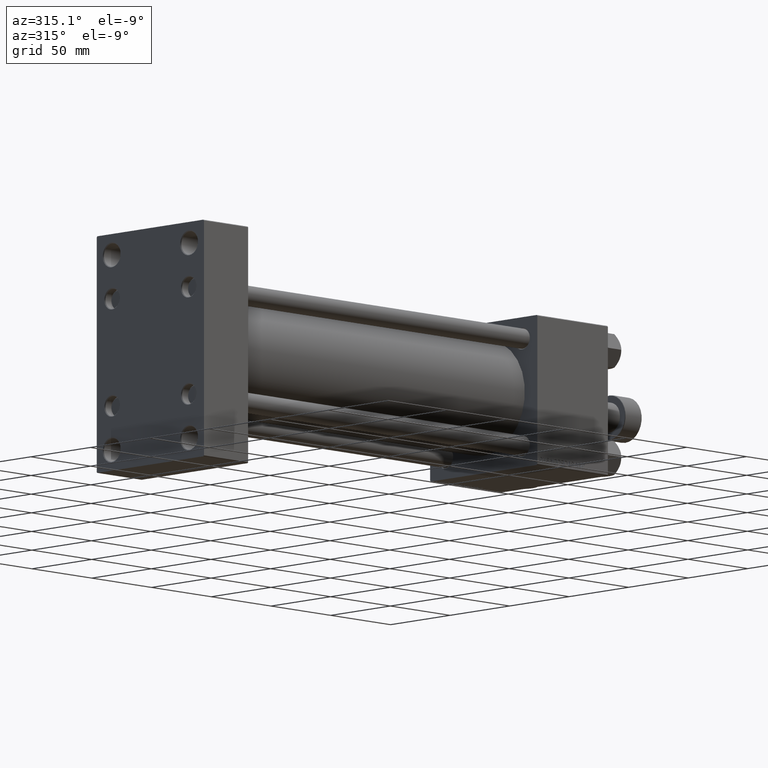
[diagram: clean part render]
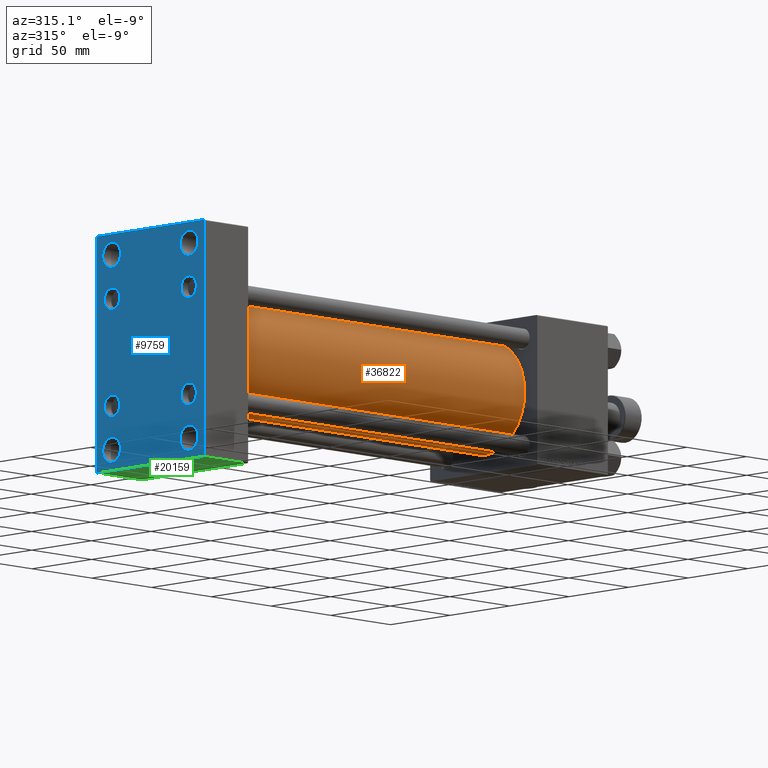
[diagram: same view with three faces highlighted in distinct colors, each labeled with its STEP entity id]
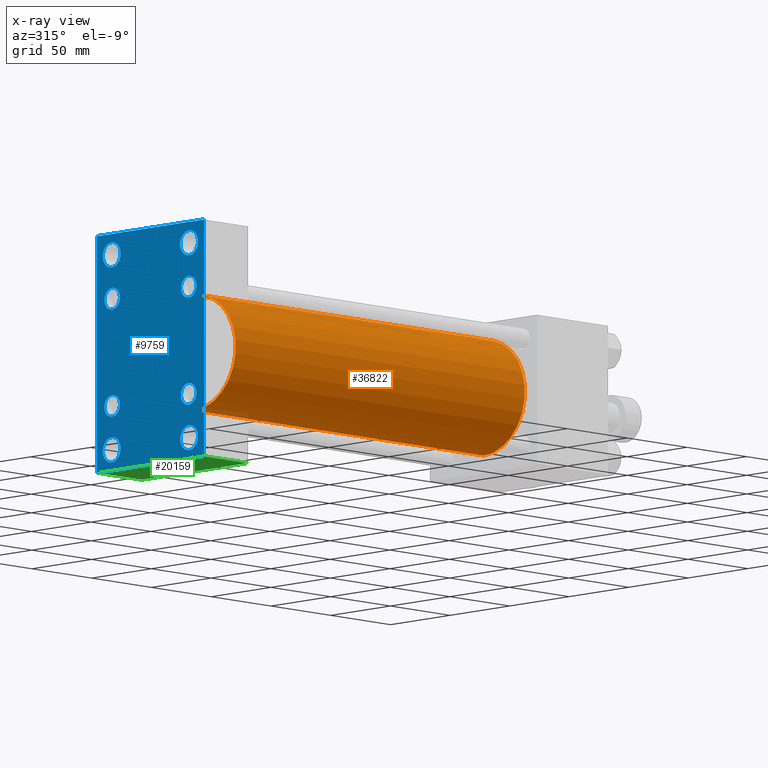
[diagram: x-ray of the same camera — body ghosted, the three highlighted faces saturated]
A machine part, auxiliary view with three faces highlighted in distinct colors.
The next image is the same camera in x-ray (body ghosted, the three faces saturated) — at least one of them is partly hidden behind the body in this view.
Their STEP definitions:

[orange] entity #36822 — the highlighted cylindrical surface (partial cylindrical patch) has radius 34.5 mm, axis along (-1, -0, -0).
#346 = DIRECTION ( 'NONE',  ( -1.000000000000000000, -0.000000000000000000, -0.000000000000000000 ) ) ;
#671 = ORIENTED_EDGE ( 'NONE', *, *, #37543, .T. ) ;
#734 = CIRCLE ( 'NONE', #2442, 34.50000000000000000 ) ;
#1503 = EDGE_CURVE ( 'NONE', #26416, #41561, #36742, .T. ) ;
#2442 = AXIS2_PLACEMENT_3D ( 'NONE', #2671, #30037, #38015 ) ;
#2671 = CARTESIAN_POINT ( 'NONE',  ( 278.9999999999999432, -2.602085213965210642E-15, 0.000000000000000000 ) ) ;
#3211 = DIRECTION ( 'NONE',  ( 1.000000000000000000, 0.000000000000000000, 0.000000000000000000 ) ) ;
#6410 = DIRECTION ( 'NONE',  ( 0.000000000000000000, 0.000000000000000000, 1.000000000000000000 ) ) ;
#6562 = DIRECTION ( 'NONE',  ( 0.000000000000000000, 0.000000000000000000, 1.000000000000000000 ) ) ;
#8128 = CARTESIAN_POINT ( 'NONE',  ( 278.9999999999999432, 1.622946243093158675E-15, -34.50000000000000000 ) ) ;
#9395 = VERTEX_POINT ( 'NONE', #12152 ) ;
#10813 = CYLINDRICAL_SURFACE ( 'NONE', #26013, 34.50000000000000000 ) ;
#11702 = CARTESIAN_POINT ( 'NONE',  ( 278.9999999999999432, -2.602085213965210642E-15, 34.50000000000000000 ) ) ;
#11872 = ORIENTED_EDGE ( 'NONE', *, *, #39644, .T. ) ;
#12152 = CARTESIAN_POINT ( 'NONE',  ( 37.00000000000000711, -2.602085213965210642E-15, 34.50000000000000000 ) ) ;
#12498 = VECTOR ( 'NONE', #20192, 1000.000000000000000 ) ;
#13092 = VERTEX_POINT ( 'NONE', #40694 ) ;
#13990 = ORIENTED_EDGE ( 'NONE', *, *, #22378, .F. ) ;
#15241 = EDGE_LOOP ( 'NONE', ( #45326, #13990, #671, #11872 ) ) ;
#19313 = CIRCLE ( 'NONE', #39728, 34.50000000000000000 ) ;
#20192 = DIRECTION ( 'NONE',  ( -1.000000000000000000, -0.000000000000000000, -0.000000000000000000 ) ) ;
#21446 = VECTOR ( 'NONE', #346, 1000.000000000000000 ) ;
#22223 = CARTESIAN_POINT ( 'NONE',  ( 37.00000000000000711, 1.622946243093158675E-15, -34.50000000000000000 ) ) ;
#22378 = EDGE_CURVE ( 'NONE', #13092, #26416, #734, .T. ) ;
#23652 = CARTESIAN_POINT ( 'NONE',  ( 37.00000000000000711, -2.602085213965210642E-15, 0.000000000000000000 ) ) ;
#26013 = AXIS2_PLACEMENT_3D ( 'NONE', #50663, #30461, #6562 ) ;
#26416 = VERTEX_POINT ( 'NONE', #8128 ) ;
#30037 = DIRECTION ( 'NONE',  ( 1.000000000000000000, 0.000000000000000000, 0.000000000000000000 ) ) ;
#30461 = DIRECTION ( 'NONE',  ( -1.000000000000000000, -0.000000000000000000, -0.000000000000000000 ) ) ;
#36742 = LINE ( 'NONE', #41502, #21446 ) ;
#36822 = ADVANCED_FACE ( 'NONE', ( #42938 ), #10813, .T. ) ;
#37543 = EDGE_CURVE ( 'NONE', #13092, #9395, #39603, .T. ) ;
#38015 = DIRECTION ( 'NONE',  ( 0.000000000000000000, 0.000000000000000000, -1.000000000000000000 ) ) ;
#39603 = LINE ( 'NONE', #11702, #12498 ) ;
#39644 = EDGE_CURVE ( 'NONE', #9395, #41561, #19313, .T. ) ;
#39728 = AXIS2_PLACEMENT_3D ( 'NONE', #23652, #3211, #6410 ) ;
#40694 = CARTESIAN_POINT ( 'NONE',  ( 278.9999999999999432, -2.602085213965210642E-15, 34.50000000000000000 ) ) ;
#41502 = CARTESIAN_POINT ( 'NONE',  ( 278.9999999999999432, 1.622946243093158675E-15, -34.50000000000000000 ) ) ;
#41561 = VERTEX_POINT ( 'NONE', #22223 ) ;
#42938 = FACE_OUTER_BOUND ( 'NONE', #15241, .T. ) ;
#45326 = ORIENTED_EDGE ( 'NONE', *, *, #1503, .F. ) ;
#50663 = CARTESIAN_POINT ( 'NONE',  ( 278.9999999999999432, -2.602085213965210642E-15, 0.000000000000000000 ) ) ;

[blue] entity #9759 — the highlighted planar face has unit normal (-1, 0, 0).
#99 = CARTESIAN_POINT ( 'NONE',  ( 0.000000000000000000, 44.50000000000002132, -70.99999999999998579 ) ) ;
#148 = DIRECTION ( 'NONE',  ( 0.000000000000000000, 0.000000000000000000, 1.000000000000000000 ) ) ;
#178 = VERTEX_POINT ( 'NONE', #24785 ) ;
#279 = VERTEX_POINT ( 'NONE', #11457 ) ;
#382 = FACE_OUTER_BOUND ( 'NONE', #3980, .T. ) ;
#563 = VERTEX_POINT ( 'NONE', #51795 ) ;
#660 = DIRECTION ( 'NONE',  ( 0.000000000000000000, -1.000000000000000000, 0.000000000000000000 ) ) ;
#1179 = DIRECTION ( 'NONE',  ( 1.000000000000000000, 0.000000000000000000, 0.000000000000000000 ) ) ;
#1242 = CARTESIAN_POINT ( 'NONE',  ( 0.000000000000000000, -45.00000000000000000, 70.99999999999998579 ) ) ;
#1380 = CARTESIAN_POINT ( 'NONE',  ( 0.000000000000000000, 32.50000000000000000, 58.50000000000000000 ) ) ;
#1423 = VECTOR ( 'NONE', #12870, 1000.000000000000000 ) ;
#1458 = VERTEX_POINT ( 'NONE', #48712 ) ;
#1621 = CARTESIAN_POINT ( 'NONE',  ( 0.000000000000000000, 32.14999999999999147, -32.15000000000000568 ) ) ;
#2093 = EDGE_CURVE ( 'NONE', #20975, #41141, #23162, .T. ) ;
#2306 = LINE ( 'NONE', #23027, #15212 ) ;
#2331 = DIRECTION ( 'NONE',  ( 1.000000000000000000, 0.000000000000000000, 0.000000000000000000 ) ) ;
#2545 = DIRECTION ( 'NONE',  ( 0.000000000000000000, 0.000000000000000000, 1.000000000000000000 ) ) ;
#2625 = VERTEX_POINT ( 'NONE', #33477 ) ;
#2763 = EDGE_LOOP ( 'NONE', ( #6912, #16130 ) ) ;
#2903 = VERTEX_POINT ( 'NONE', #34460 ) ;
#3105 = CARTESIAN_POINT ( 'NONE',  ( 0.000000000000000000, -32.50000000000000000, -58.50000000000000711 ) ) ;
#3133 = CARTESIAN_POINT ( 'NONE',  ( 0.000000000000000000, 32.50000000000000000, 58.50000000000000000 ) ) ;
#3176 = LINE ( 'NONE', #11419, #51273 ) ;
#3346 = CARTESIAN_POINT ( 'NONE',  ( 0.000000000000000000, 45.00000000000000711, 71.00000000000000000 ) ) ;
#3584 = FACE_BOUND ( 'NONE', #7745, .T. ) ;
#3632 = ORIENTED_EDGE ( 'NONE', *, *, #27548, .F. ) ;
#3980 = EDGE_LOOP ( 'NONE', ( #27130, #14865, #43428, #33917, #3632, #10163, #12442, #49056 ) ) ;
#4641 = LINE ( 'NONE', #33307, #1423 ) ;
#4800 = ORIENTED_EDGE ( 'NONE', *, *, #24777, .T. ) ;
#5147 = FACE_BOUND ( 'NONE', #29053, .T. ) ;
#5176 = CARTESIAN_POINT ( 'NONE',  ( 0.000000000000000000, -32.14999999999997726, -32.15000000000001279 ) ) ;
#5507 = CIRCLE ( 'NONE', #6389, 6.500000000000033751 ) ;
#6091 = CARTESIAN_POINT ( 'NONE',  ( 0.000000000000000000, -32.14999999999997726, 32.15000000000001279 ) ) ;
#6279 = CARTESIAN_POINT ( 'NONE',  ( 0.000000000000000000, 32.14999999999999147, 38.65000000000004832 ) ) ;
#6389 = AXIS2_PLACEMENT_3D ( 'NONE', #12382, #36803, #148 ) ;
#6518 = CIRCLE ( 'NONE', #26839, 6.500000000000033751 ) ;
#6698 = CIRCLE ( 'NONE', #42321, 6.499999999999977796 ) ;
#6737 = CARTESIAN_POINT ( 'NONE',  ( 0.000000000000000000, -44.49999999999999289, 70.99999999999998579 ) ) ;
#6912 = ORIENTED_EDGE ( 'NONE', *, *, #44196, .T. ) ;
#7111 = CARTESIAN_POINT ( 'NONE',  ( 0.000000000000000000, -45.00000000000000000, 70.49999999999998579 ) ) ;
#7652 = DIRECTION ( 'NONE',  ( 1.000000000000000000, 0.000000000000000000, 0.000000000000000000 ) ) ;
#7682 = EDGE_CURVE ( 'NONE', #41141, #20975, #19026, .T. ) ;
#7745 = EDGE_LOOP ( 'NONE', ( #17574, #33922 ) ) ;
#8431 = EDGE_CURVE ( 'NONE', #279, #39943, #36855, .T. ) ;
#8495 = AXIS2_PLACEMENT_3D ( 'NONE', #38730, #2331, #18530 ) ;
#8537 = EDGE_CURVE ( 'NONE', #2903, #16042, #3176, .T. ) ;
#8944 = AXIS2_PLACEMENT_3D ( 'NONE', #25601, #41787, #33054 ) ;
#9759 = ADVANCED_FACE ( 'NONE', ( #11563, #27763, #3584, #35990, #16841, #5147, #20833, #49007, #382 ), #33558, .T. ) ;
#10156 = DIRECTION ( 'NONE',  ( 0.000000000000000000, 0.000000000000000000, 1.000000000000000000 ) ) ;
#10163 = ORIENTED_EDGE ( 'NONE', *, *, #23210, .T. ) ;
#10418 = AXIS2_PLACEMENT_3D ( 'NONE', #12717, #24405, #20163 ) ;
#10969 = EDGE_CURVE ( 'NONE', #39943, #279, #48851, .T. ) ;
#11002 = EDGE_CURVE ( 'NONE', #1458, #2903, #39342, .T. ) ;
#11016 = ORIENTED_EDGE ( 'NONE', *, *, #35697, .T. ) ;
#11162 = VERTEX_POINT ( 'NONE', #26790 ) ;
#11219 = CARTESIAN_POINT ( 'NONE',  ( 0.000000000000000000, 32.50000000000000000, -58.50000000000000711 ) ) ;
#11419 = CARTESIAN_POINT ( 'NONE',  ( 0.000000000000000000, 45.00000000000000711, 71.00000000000000000 ) ) ;
#11457 = CARTESIAN_POINT ( 'NONE',  ( 0.000000000000000000, -32.50000000000000000, 50.99999999999976552 ) ) ;
#11563 = FACE_BOUND ( 'NONE', #46746, .T. ) ;
#11584 = LINE ( 'NONE', #3346, #18806 ) ;
#12129 = DIRECTION ( 'NONE',  ( 1.000000000000000000, 0.000000000000000000, 0.000000000000000000 ) ) ;
#12309 = DIRECTION ( 'NONE',  ( 0.000000000000000000, 0.000000000000000000, 1.000000000000000000 ) ) ;
#12382 = CARTESIAN_POINT ( 'NONE',  ( 0.000000000000000000, 32.14999999999999147, 32.15000000000000568 ) ) ;
#12442 = ORIENTED_EDGE ( 'NONE', *, *, #26278, .F. ) ;
#12455 = DIRECTION ( 'NONE',  ( 1.000000000000000000, 0.000000000000000000, 0.000000000000000000 ) ) ;
#12717 = CARTESIAN_POINT ( 'NONE',  ( 0.000000000000000000, -32.50000000000000000, -58.50000000000000711 ) ) ;
#12870 = DIRECTION ( 'NONE',  ( -0.000000000000000000, -0.7071067811865279218, -0.7071067811865671127 ) ) ;
#13611 = DIRECTION ( 'NONE',  ( 1.000000000000000000, 0.000000000000000000, 0.000000000000000000 ) ) ;
#13967 = EDGE_CURVE ( 'NONE', #34929, #27212, #6518, .T. ) ;
#14214 = EDGE_CURVE ( 'NONE', #16042, #14733, #4641, .T. ) ;
#14423 = VERTEX_POINT ( 'NONE', #6737 ) ;
#14733 = VERTEX_POINT ( 'NONE', #99 ) ;
#14865 = ORIENTED_EDGE ( 'NONE', *, *, #14214, .T. ) ;
#15008 = EDGE_CURVE ( 'NONE', #38390, #563, #32836, .T. ) ;
#15212 = VECTOR ( 'NONE', #20293, 1000.000000000000000 ) ;
#15221 = DIRECTION ( 'NONE',  ( 1.000000000000000000, 0.000000000000000000, 0.000000000000000000 ) ) ;
#15271 = ORIENTED_EDGE ( 'NONE', *, *, #18657, .T. ) ;
#15773 = VECTOR ( 'NONE', #43832, 1000.000000000000000 ) ;
#16042 = VERTEX_POINT ( 'NONE', #25073 ) ;
#16130 = ORIENTED_EDGE ( 'NONE', *, *, #13967, .T. ) ;
#16540 = ORIENTED_EDGE ( 'NONE', *, *, #34111, .T. ) ;
#16841 = FACE_BOUND ( 'NONE', #2763, .T. ) ;
#17387 = DIRECTION ( 'NONE',  ( 0.000000000000000000, 0.000000000000000000, 1.000000000000000000 ) ) ;
#17408 = AXIS2_PLACEMENT_3D ( 'NONE', #1621, #45718, #46238 ) ;
#17450 = DIRECTION ( 'NONE',  ( 0.000000000000000000, 0.000000000000000000, -1.000000000000000000 ) ) ;
#17526 = CARTESIAN_POINT ( 'NONE',  ( 0.000000000000000000, -44.49999999999999289, -70.99999999999998579 ) ) ;
#17574 = ORIENTED_EDGE ( 'NONE', *, *, #2093, .T. ) ;
#18302 = DIRECTION ( 'NONE',  ( 1.000000000000000000, 0.000000000000000000, 0.000000000000000000 ) ) ;
#18489 = VERTEX_POINT ( 'NONE', #17526 ) ;
#18530 = DIRECTION ( 'NONE',  ( 0.000000000000000000, 0.000000000000000000, 1.000000000000000000 ) ) ;
#18657 = EDGE_CURVE ( 'NONE', #43316, #35597, #24373, .T. ) ;
#18806 = VECTOR ( 'NONE', #31765, 1000.000000000000000 ) ;
#19026 = CIRCLE ( 'NONE', #40229, 7.500000000000284217 ) ;
#19818 = VECTOR ( 'NONE', #40857, 1000.000000000000000 ) ;
#20163 = DIRECTION ( 'NONE',  ( 0.000000000000000000, 0.000000000000000000, 1.000000000000000000 ) ) ;
#20293 = DIRECTION ( 'NONE',  ( -0.000000000000000000, 0.7071067811865328068, 0.7071067811865622277 ) ) ;
#20833 = FACE_BOUND ( 'NONE', #34188, .T. ) ;
#20975 = VERTEX_POINT ( 'NONE', #22508 ) ;
#21268 = CARTESIAN_POINT ( 'NONE',  ( 0.000000000000000000, -32.50000000000000000, 58.50000000000000000 ) ) ;
#21507 = VECTOR ( 'NONE', #17450, 1000.000000000000000 ) ;
#21732 = CIRCLE ( 'NONE', #41267, 6.500000000000033751 ) ;
#21830 = DIRECTION ( 'NONE',  ( 0.000000000000000000, 0.000000000000000000, 1.000000000000000000 ) ) ;
#21992 = CIRCLE ( 'NONE', #51719, 7.500000000000214939 ) ;
#22488 = CIRCLE ( 'NONE', #17408, 6.499999999999977796 ) ;
#22508 = CARTESIAN_POINT ( 'NONE',  ( 0.000000000000000000, -32.50000000000000000, -50.99999999999972289 ) ) ;
#22550 = DIRECTION ( 'NONE',  ( 0.000000000000000000, 0.000000000000000000, 1.000000000000000000 ) ) ;
#22721 = CARTESIAN_POINT ( 'NONE',  ( 0.000000000000000000, -32.14999999999997726, 32.15000000000001279 ) ) ;
#22844 = ORIENTED_EDGE ( 'NONE', *, *, #10969, .T. ) ;
#23013 = VECTOR ( 'NONE', #660, 1000.000000000000000 ) ;
#23027 = CARTESIAN_POINT ( 'NONE',  ( -0.000000000000000000, -57.75000000000092371, 57.74999999999852207 ) ) ;
#23162 = CIRCLE ( 'NONE', #10418, 7.500000000000284217 ) ;
#23210 = EDGE_CURVE ( 'NONE', #32567, #14423, #2306, .T. ) ;
#23440 = VERTEX_POINT ( 'NONE', #50803 ) ;
#23455 = EDGE_CURVE ( 'NONE', #178, #11162, #6698, .T. ) ;
#24373 = CIRCLE ( 'NONE', #30307, 6.500000000000033751 ) ;
#24405 = DIRECTION ( 'NONE',  ( 1.000000000000000000, 0.000000000000000000, 0.000000000000000000 ) ) ;
#24777 = EDGE_CURVE ( 'NONE', #46478, #23440, #46648, .T. ) ;
#24785 = CARTESIAN_POINT ( 'NONE',  ( 0.000000000000000000, 32.14999999999999147, -38.64999999999998437 ) ) ;
#25073 = CARTESIAN_POINT ( 'NONE',  ( 0.000000000000000000, 45.00000000000000711, -70.49999999999997158 ) ) ;
#25357 = CARTESIAN_POINT ( 'NONE',  ( 0.000000000000000000, 45.00000000000000711, -70.99999999999998579 ) ) ;
#25601 = CARTESIAN_POINT ( 'NONE',  ( 0.000000000000000000, 0.000000000000000000, 0.000000000000000000 ) ) ;
#25768 = DIRECTION ( 'NONE',  ( 0.000000000000000000, 0.000000000000000000, 1.000000000000000000 ) ) ;
#26278 = EDGE_CURVE ( 'NONE', #1458, #14423, #11584, .T. ) ;
#26756 = ORIENTED_EDGE ( 'NONE', *, *, #49195, .T. ) ;
#26790 = CARTESIAN_POINT ( 'NONE',  ( 0.000000000000000000, 32.14999999999999147, -25.65000000000002700 ) ) ;
#26820 = ORIENTED_EDGE ( 'NONE', *, *, #8431, .T. ) ;
#26839 = AXIS2_PLACEMENT_3D ( 'NONE', #22721, #38942, #2545 ) ;
#26909 = EDGE_LOOP ( 'NONE', ( #32440, #45495 ) ) ;
#27130 = ORIENTED_EDGE ( 'NONE', *, *, #8537, .T. ) ;
#27212 = VERTEX_POINT ( 'NONE', #29727 ) ;
#27431 = EDGE_CURVE ( 'NONE', #18489, #37151, #28899, .T. ) ;
#27548 = EDGE_CURVE ( 'NONE', #32567, #37151, #37639, .T. ) ;
#27620 = DIRECTION ( 'NONE',  ( 0.000000000000000000, 0.000000000000000000, -1.000000000000000000 ) ) ;
#27763 = FACE_BOUND ( 'NONE', #36721, .T. ) ;
#28328 = DIRECTION ( 'NONE',  ( 0.000000000000000000, 0.000000000000000000, 1.000000000000000000 ) ) ;
#28899 = LINE ( 'NONE', #29401, #19818 ) ;
#29053 = EDGE_LOOP ( 'NONE', ( #4800, #11016 ) ) ;
#29401 = CARTESIAN_POINT ( 'NONE',  ( 0.000000000000000000, -57.74999999999968026, -57.75000000000048317 ) ) ;
#29727 = CARTESIAN_POINT ( 'NONE',  ( 0.000000000000000000, -32.14999999999997726, 38.65000000000004832 ) ) ;
#30226 = EDGE_CURVE ( 'NONE', #35597, #43316, #5507, .T. ) ;
#30304 = DIRECTION ( 'NONE',  ( 0.000000000000000000, 0.000000000000000000, 1.000000000000000000 ) ) ;
#30307 = AXIS2_PLACEMENT_3D ( 'NONE', #36361, #12455, #44313 ) ;
#31096 = DIRECTION ( 'NONE',  ( 1.000000000000000000, 0.000000000000000000, 0.000000000000000000 ) ) ;
#31262 = CARTESIAN_POINT ( 'NONE',  ( 0.000000000000000000, -32.14999999999997726, -25.64999999999997726 ) ) ;
#31450 = ORIENTED_EDGE ( 'NONE', *, *, #23455, .T. ) ;
#31735 = AXIS2_PLACEMENT_3D ( 'NONE', #21268, #34257, #25768 ) ;
#31765 = DIRECTION ( 'NONE',  ( 0.000000000000000000, -1.000000000000000000, -1.541976423090495387E-16 ) ) ;
#32190 = CARTESIAN_POINT ( 'NONE',  ( 0.000000000000000000, 32.14999999999999147, -32.15000000000000568 ) ) ;
#32247 = AXIS2_PLACEMENT_3D ( 'NONE', #6091, #18302, #22550 ) ;
#32440 = ORIENTED_EDGE ( 'NONE', *, *, #15008, .T. ) ;
#32567 = VERTEX_POINT ( 'NONE', #7111 ) ;
#32836 = CIRCLE ( 'NONE', #43012, 7.500000000000284217 ) ;
#33054 = DIRECTION ( 'NONE',  ( -0.000000000000000000, 0.000000000000000000, 1.000000000000000000 ) ) ;
#33113 = CIRCLE ( 'NONE', #37357, 7.500000000000214939 ) ;
#33200 = CARTESIAN_POINT ( 'NONE',  ( 0.000000000000000000, -32.50000000000000000, -66.00000000000028422 ) ) ;
#33307 = CARTESIAN_POINT ( 'NONE',  ( -0.000000000000000000, 57.75000000000122924, -57.74999999999802469 ) ) ;
#33477 = CARTESIAN_POINT ( 'NONE',  ( 0.000000000000000000, 32.50000000000000000, 50.99999999999977263 ) ) ;
#33558 = PLANE ( 'NONE',  #8944 ) ;
#33917 = ORIENTED_EDGE ( 'NONE', *, *, #27431, .T. ) ;
#33922 = ORIENTED_EDGE ( 'NONE', *, *, #7682, .T. ) ;
#34111 = EDGE_CURVE ( 'NONE', #11162, #178, #22488, .T. ) ;
#34188 = EDGE_LOOP ( 'NONE', ( #16540, #31450 ) ) ;
#34257 = DIRECTION ( 'NONE',  ( 1.000000000000000000, 0.000000000000000000, 0.000000000000000000 ) ) ;
#34460 = CARTESIAN_POINT ( 'NONE',  ( 0.000000000000000000, 45.00000000000000711, 70.50000000000000000 ) ) ;
#34929 = VERTEX_POINT ( 'NONE', #40191 ) ;
#35597 = VERTEX_POINT ( 'NONE', #52240 ) ;
#35697 = EDGE_CURVE ( 'NONE', #23440, #46478, #21732, .T. ) ;
#35990 = FACE_BOUND ( 'NONE', #26909, .T. ) ;
#36168 = DIRECTION ( 'NONE',  ( 0.000000000000000000, 0.000000000000000000, 1.000000000000000000 ) ) ;
#36361 = CARTESIAN_POINT ( 'NONE',  ( 0.000000000000000000, 32.14999999999999147, 32.15000000000000568 ) ) ;
#36721 = EDGE_LOOP ( 'NONE', ( #22844, #26820 ) ) ;
#36803 = DIRECTION ( 'NONE',  ( 1.000000000000000000, 0.000000000000000000, 0.000000000000000000 ) ) ;
#36855 = CIRCLE ( 'NONE', #31735, 7.500000000000229150 ) ;
#37103 = CARTESIAN_POINT ( 'NONE',  ( 0.000000000000000000, -32.50000000000000000, 66.00000000000022737 ) ) ;
#37151 = VERTEX_POINT ( 'NONE', #43105 ) ;
#37357 = AXIS2_PLACEMENT_3D ( 'NONE', #3133, #7652, #39796 ) ;
#37639 = LINE ( 'NONE', #1242, #21507 ) ;
#37837 = LINE ( 'NONE', #25357, #23013 ) ;
#38390 = VERTEX_POINT ( 'NONE', #50062 ) ;
#38579 = DIRECTION ( 'NONE',  ( 1.000000000000000000, 0.000000000000000000, 0.000000000000000000 ) ) ;
#38730 = CARTESIAN_POINT ( 'NONE',  ( 0.000000000000000000, -32.14999999999997726, -32.15000000000001279 ) ) ;
#38808 = CARTESIAN_POINT ( 'NONE',  ( 0.000000000000000000, -32.50000000000000000, 58.50000000000000000 ) ) ;
#38942 = DIRECTION ( 'NONE',  ( 1.000000000000000000, 0.000000000000000000, 0.000000000000000000 ) ) ;
#39118 = VERTEX_POINT ( 'NONE', #42331 ) ;
#39342 = LINE ( 'NONE', #47830, #15773 ) ;
#39516 = AXIS2_PLACEMENT_3D ( 'NONE', #38808, #31096, #30304 ) ;
#39796 = DIRECTION ( 'NONE',  ( 0.000000000000000000, 0.000000000000000000, 1.000000000000000000 ) ) ;
#39828 = CIRCLE ( 'NONE', #49160, 7.500000000000284217 ) ;
#39943 = VERTEX_POINT ( 'NONE', #37103 ) ;
#40191 = CARTESIAN_POINT ( 'NONE',  ( 0.000000000000000000, -32.14999999999997726, 25.64999999999997726 ) ) ;
#40228 = ORIENTED_EDGE ( 'NONE', *, *, #43834, .T. ) ;
#40229 = AXIS2_PLACEMENT_3D ( 'NONE', #3105, #12129, #28328 ) ;
#40857 = DIRECTION ( 'NONE',  ( 0.000000000000000000, -0.7071067811865524577, 0.7071067811865426878 ) ) ;
#41141 = VERTEX_POINT ( 'NONE', #33200 ) ;
#41252 = EDGE_LOOP ( 'NONE', ( #15271, #49199 ) ) ;
#41267 = AXIS2_PLACEMENT_3D ( 'NONE', #5176, #1179, #17387 ) ;
#41787 = DIRECTION ( 'NONE',  ( -1.000000000000000000, 0.000000000000000000, -0.000000000000000000 ) ) ;
#42274 = CARTESIAN_POINT ( 'NONE',  ( 0.000000000000000000, 32.50000000000000000, -58.50000000000000711 ) ) ;
#42321 = AXIS2_PLACEMENT_3D ( 'NONE', #32190, #15221, #36168 ) ;
#42331 = CARTESIAN_POINT ( 'NONE',  ( 0.000000000000000000, 32.50000000000000000, 66.00000000000022737 ) ) ;
#43012 = AXIS2_PLACEMENT_3D ( 'NONE', #11219, #38579, #10156 ) ;
#43105 = CARTESIAN_POINT ( 'NONE',  ( 0.000000000000000000, -45.00000000000000000, -70.50000000000000000 ) ) ;
#43316 = VERTEX_POINT ( 'NONE', #6279 ) ;
#43428 = ORIENTED_EDGE ( 'NONE', *, *, #50576, .T. ) ;
#43832 = DIRECTION ( 'NONE',  ( 0.000000000000000000, 0.7071067811865573427, -0.7071067811865378028 ) ) ;
#43834 = EDGE_CURVE ( 'NONE', #2625, #39118, #21992, .T. ) ;
#44196 = EDGE_CURVE ( 'NONE', #27212, #34929, #48368, .T. ) ;
#44313 = DIRECTION ( 'NONE',  ( 0.000000000000000000, 0.000000000000000000, 1.000000000000000000 ) ) ;
#45495 = ORIENTED_EDGE ( 'NONE', *, *, #46220, .T. ) ;
#45718 = DIRECTION ( 'NONE',  ( 1.000000000000000000, 0.000000000000000000, 0.000000000000000000 ) ) ;
#46220 = EDGE_CURVE ( 'NONE', #563, #38390, #39828, .T. ) ;
#46238 = DIRECTION ( 'NONE',  ( 0.000000000000000000, 0.000000000000000000, 1.000000000000000000 ) ) ;
#46478 = VERTEX_POINT ( 'NONE', #31262 ) ;
#46648 = CIRCLE ( 'NONE', #8495, 6.500000000000033751 ) ;
#46746 = EDGE_LOOP ( 'NONE', ( #26756, #40228 ) ) ;
#47830 = CARTESIAN_POINT ( 'NONE',  ( -0.000000000000000000, 57.74999999999938183, 57.75000000000098055 ) ) ;
#48368 = CIRCLE ( 'NONE', #32247, 6.500000000000033751 ) ;
#48702 = DIRECTION ( 'NONE',  ( 1.000000000000000000, 0.000000000000000000, 0.000000000000000000 ) ) ;
#48712 = CARTESIAN_POINT ( 'NONE',  ( 0.000000000000000000, 44.50000000000000711, 71.00000000000000000 ) ) ;
#48851 = CIRCLE ( 'NONE', #39516, 7.500000000000229150 ) ;
#49007 = FACE_BOUND ( 'NONE', #41252, .T. ) ;
#49056 = ORIENTED_EDGE ( 'NONE', *, *, #11002, .T. ) ;
#49160 = AXIS2_PLACEMENT_3D ( 'NONE', #42274, #13611, #21830 ) ;
#49195 = EDGE_CURVE ( 'NONE', #39118, #2625, #33113, .T. ) ;
#49199 = ORIENTED_EDGE ( 'NONE', *, *, #30226, .T. ) ;
#50062 = CARTESIAN_POINT ( 'NONE',  ( 0.000000000000000000, 32.50000000000000000, -50.99999999999972289 ) ) ;
#50576 = EDGE_CURVE ( 'NONE', #14733, #18489, #37837, .T. ) ;
#50803 = CARTESIAN_POINT ( 'NONE',  ( 0.000000000000000000, -32.14999999999997726, -38.65000000000004832 ) ) ;
#51273 = VECTOR ( 'NONE', #27620, 1000.000000000000000 ) ;
#51719 = AXIS2_PLACEMENT_3D ( 'NONE', #1380, #48702, #12309 ) ;
#51795 = CARTESIAN_POINT ( 'NONE',  ( 0.000000000000000000, 32.50000000000000000, -66.00000000000028422 ) ) ;
#52240 = CARTESIAN_POINT ( 'NONE',  ( 0.000000000000000000, 32.14999999999999147, 25.64999999999997016 ) ) ;

[green] entity #20159 — the highlighted planar face has unit normal (0, 0, -1).
#99 = CARTESIAN_POINT ( 'NONE',  ( 0.000000000000000000, 44.50000000000002132, -70.99999999999998579 ) ) ;
#660 = DIRECTION ( 'NONE',  ( 0.000000000000000000, -1.000000000000000000, 0.000000000000000000 ) ) ;
#801 = VERTEX_POINT ( 'NONE', #36554 ) ;
#2464 = DIRECTION ( 'NONE',  ( 0.000000000000000000, 0.000000000000000000, -1.000000000000000000 ) ) ;
#4017 = LINE ( 'NONE', #27928, #52145 ) ;
#6188 = PLANE ( 'NONE',  #8298 ) ;
#6451 = FACE_OUTER_BOUND ( 'NONE', #23218, .T. ) ;
#8268 = DIRECTION ( 'NONE',  ( 0.000000000000000000, -1.000000000000000000, 0.000000000000000000 ) ) ;
#8298 = AXIS2_PLACEMENT_3D ( 'NONE', #22381, #2464, #18129 ) ;
#8552 = VECTOR ( 'NONE', #24378, 1000.000000000000000 ) ;
#8781 = CARTESIAN_POINT ( 'NONE',  ( 37.00000000000000000, 44.50000000000002132, -70.99999999999998579 ) ) ;
#10128 = VERTEX_POINT ( 'NONE', #38532 ) ;
#14733 = VERTEX_POINT ( 'NONE', #99 ) ;
#17526 = CARTESIAN_POINT ( 'NONE',  ( 0.000000000000000000, -44.49999999999999289, -70.99999999999998579 ) ) ;
#18129 = DIRECTION ( 'NONE',  ( -1.000000000000000000, 0.000000000000000000, -0.000000000000000000 ) ) ;
#18460 = EDGE_CURVE ( 'NONE', #14733, #801, #45165, .T. ) ;
#18489 = VERTEX_POINT ( 'NONE', #17526 ) ;
#20159 = ADVANCED_FACE ( 'NONE', ( #6451 ), #6188, .T. ) ;
#20650 = LINE ( 'NONE', #36856, #8552 ) ;
#20993 = DIRECTION ( 'NONE',  ( 1.000000000000000000, 0.000000000000000000, 0.000000000000000000 ) ) ;
#22381 = CARTESIAN_POINT ( 'NONE',  ( 37.00000000000000000, 45.00000000000000711, -70.99999999999998579 ) ) ;
#22630 = ORIENTED_EDGE ( 'NONE', *, *, #27884, .T. ) ;
#23013 = VECTOR ( 'NONE', #660, 1000.000000000000000 ) ;
#23218 = EDGE_LOOP ( 'NONE', ( #45836, #37672, #22630, #35452 ) ) ;
#24378 = DIRECTION ( 'NONE',  ( -1.000000000000000000, 0.000000000000000000, 0.000000000000000000 ) ) ;
#25357 = CARTESIAN_POINT ( 'NONE',  ( 0.000000000000000000, 45.00000000000000711, -70.99999999999998579 ) ) ;
#27884 = EDGE_CURVE ( 'NONE', #801, #10128, #4017, .T. ) ;
#27928 = CARTESIAN_POINT ( 'NONE',  ( 37.00000000000000000, 45.00000000000000711, -70.99999999999998579 ) ) ;
#35452 = ORIENTED_EDGE ( 'NONE', *, *, #50189, .T. ) ;
#36554 = CARTESIAN_POINT ( 'NONE',  ( 37.00000000000000000, 44.50000000000002132, -70.99999999999998579 ) ) ;
#36856 = CARTESIAN_POINT ( 'NONE',  ( 0.000000000000000000, -44.50000000000002132, -70.99999999999998579 ) ) ;
#37672 = ORIENTED_EDGE ( 'NONE', *, *, #18460, .T. ) ;
#37837 = LINE ( 'NONE', #25357, #23013 ) ;
#38532 = CARTESIAN_POINT ( 'NONE',  ( 37.00000000000000000, -44.49999999999999289, -70.99999999999998579 ) ) ;
#45165 = LINE ( 'NONE', #8781, #51539 ) ;
#45836 = ORIENTED_EDGE ( 'NONE', *, *, #50576, .F. ) ;
#50189 = EDGE_CURVE ( 'NONE', #10128, #18489, #20650, .T. ) ;
#50576 = EDGE_CURVE ( 'NONE', #14733, #18489, #37837, .T. ) ;
#51539 = VECTOR ( 'NONE', #20993, 1000.000000000000000 ) ;
#52145 = VECTOR ( 'NONE', #8268, 1000.000000000000000 ) ;